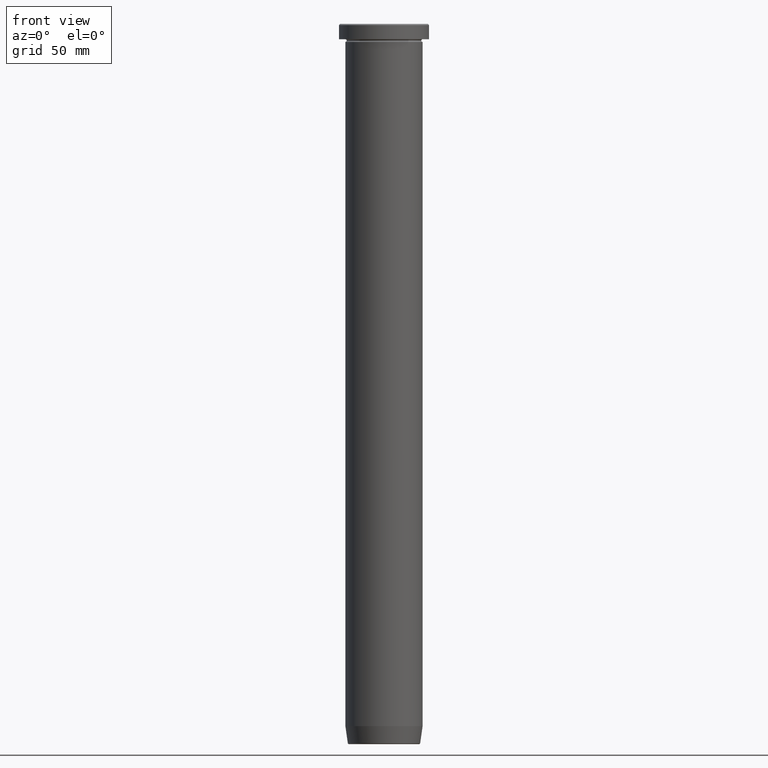
[diagram: clean part render]
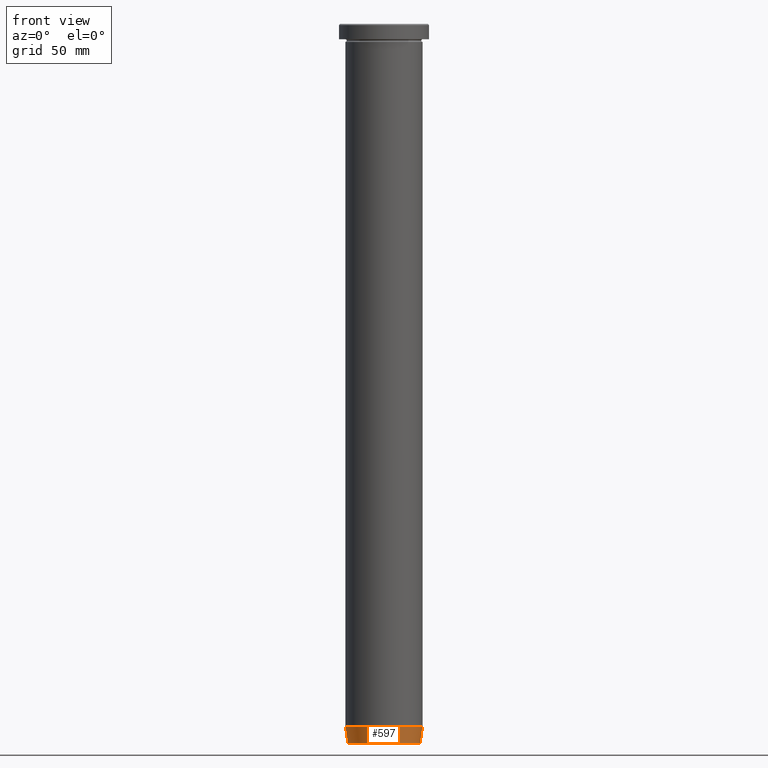
[diagram: same view with one face highlighted and labeled with its STEP entity id]
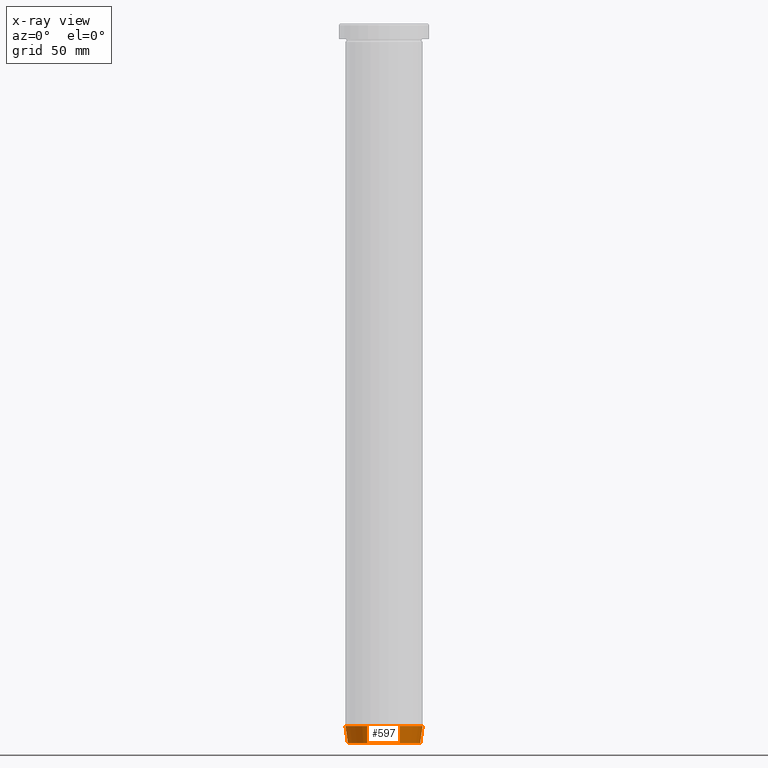
[diagram: x-ray of the same camera — body ghosted, the highlighted face saturated]
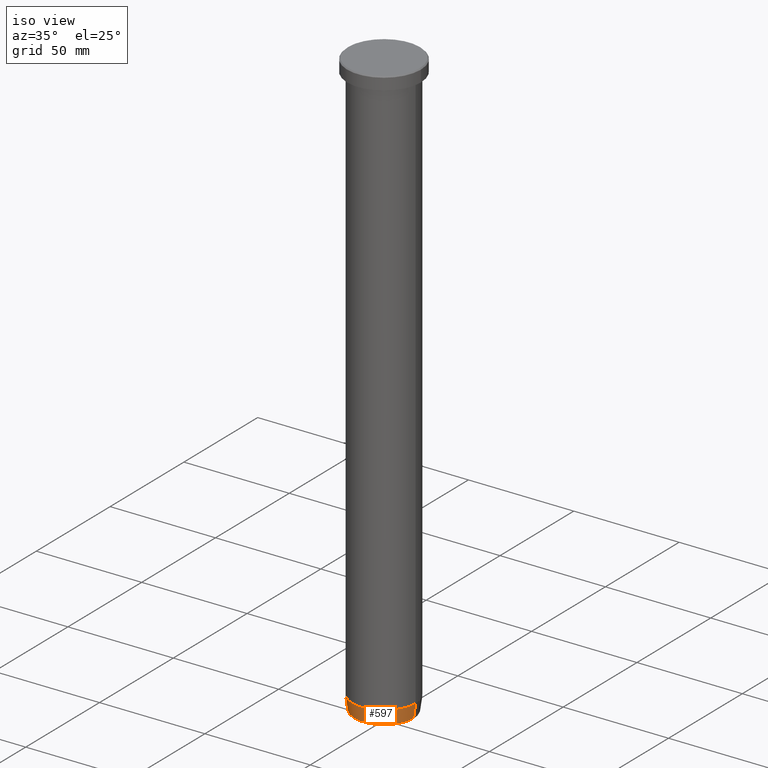
[diagram: same view with one face highlighted and labeled with its STEP entity id]
A machine part, front view. The second image highlights one B-rep face of the part: STEP entity #597.
The next image is the same camera in x-ray: the body ghosted, the highlighted face saturated — about 0% of this face is hidden behind the body in this view.
A second angle (iso view) of the same face is appended — the face is thin or edge-on in the first view.
In plain terms, the highlighted conical surface has half-angle 8 deg.
Its self-contained STEP definition (entity closure, byte-faithful):
#6 = LINE ( 'NONE', #207, #475 ) ;
#36 = DIRECTION ( 'NONE',  ( 1.000000000000000000, 0.000000000000000000, 0.000000000000000000 ) ) ;
#71 = CARTESIAN_POINT ( 'NONE',  ( -15.00000000000000000, 1.836970198721029589E-15, -272.9999999999999432 ) ) ;
#82 = CARTESIAN_POINT ( 'NONE',  ( 0.000000000000000000, 0.000000000000000000, -279.5695865504799826 ) ) ;
#85 = VERTEX_POINT ( 'NONE', #342 ) ;
#93 = CIRCLE ( 'NONE', #202, 15.00000000000000000 ) ;
#109 = VERTEX_POINT ( 'NONE', #122 ) ;
#121 = DIRECTION ( 'NONE',  ( -0.000000000000000000, -0.000000000000000000, 1.000000000000000000 ) ) ;
#122 = CARTESIAN_POINT ( 'NONE',  ( 14.07670482254592592, 0.000000000000000000, -279.5695865504799826 ) ) ;
#136 = DIRECTION ( 'NONE',  ( -0.000000000000000000, -0.000000000000000000, 1.000000000000000000 ) ) ;
#170 = EDGE_LOOP ( 'NONE', ( #554, #312, #217, #583 ) ) ;
#171 = AXIS2_PLACEMENT_3D ( 'NONE', #82, #594, #421 ) ;
#188 = CIRCLE ( 'NONE', #171, 14.07670482254592592 ) ;
#199 = CARTESIAN_POINT ( 'NONE',  ( 0.000000000000000000, 0.000000000000000000, -279.9999999999999432 ) ) ;
#202 = AXIS2_PLACEMENT_3D ( 'NONE', #573, #121, #403 ) ;
#207 = CARTESIAN_POINT ( 'NONE',  ( 14.01621415708325280, 0.000000000000000000, -279.9999999999999432 ) ) ;
#217 = ORIENTED_EDGE ( 'NONE', *, *, #404, .T. ) ;
#226 = EDGE_CURVE ( 'NONE', #264, #401, #93, .T. ) ;
#232 = AXIS2_PLACEMENT_3D ( 'NONE', #199, #136, #36 ) ;
#233 = LINE ( 'NONE', #323, #473 ) ;
#264 = VERTEX_POINT ( 'NONE', #71 ) ;
#312 = ORIENTED_EDGE ( 'NONE', *, *, #579, .T. ) ;
#323 = CARTESIAN_POINT ( 'NONE',  ( -14.01621415708325280, 1.716491180363582438E-15, -279.9999999999999432 ) ) ;
#342 = CARTESIAN_POINT ( 'NONE',  ( -14.07670482254592592, 1.780434674534163799E-15, -279.5695865504799826 ) ) ;
#380 = CARTESIAN_POINT ( 'NONE',  ( 15.00000000000000000, 0.000000000000000000, -272.9999999999999432 ) ) ;
#401 = VERTEX_POINT ( 'NONE', #380 ) ;
#403 = DIRECTION ( 'NONE',  ( 1.000000000000000000, 0.000000000000000000, 0.000000000000000000 ) ) ;
#404 = EDGE_CURVE ( 'NONE', #109, #401, #6, .T. ) ;
#421 = DIRECTION ( 'NONE',  ( -1.000000000000000000, 0.000000000000000000, 0.000000000000000000 ) ) ;
#473 = VECTOR ( 'NONE', #490, 1000.000000000000000 ) ;
#475 = VECTOR ( 'NONE', #513, 1000.000000000000000 ) ;
#490 = DIRECTION ( 'NONE',  ( -0.1391731009600661317, 1.704378926181564302E-17, 0.9902680687415702510 ) ) ;
#502 = FACE_OUTER_BOUND ( 'NONE', #170, .T. ) ;
#509 = CONICAL_SURFACE ( 'NONE', #232, 14.01621415708325280, 0.1396263401595470577 ) ;
#513 = DIRECTION ( 'NONE',  ( 0.1391731009600661317, 0.000000000000000000, 0.9902680687415702510 ) ) ;
#554 = ORIENTED_EDGE ( 'NONE', *, *, #568, .F. ) ;
#568 = EDGE_CURVE ( 'NONE', #85, #264, #233, .T. ) ;
#573 = CARTESIAN_POINT ( 'NONE',  ( 0.000000000000000000, 0.000000000000000000, -272.9999999999999432 ) ) ;
#579 = EDGE_CURVE ( 'NONE', #85, #109, #188, .T. ) ;
#583 = ORIENTED_EDGE ( 'NONE', *, *, #226, .F. ) ;
#594 = DIRECTION ( 'NONE',  ( -0.000000000000000000, -0.000000000000000000, 1.000000000000000000 ) ) ;
#597 = ADVANCED_FACE ( 'NONE', ( #502 ), #509, .T. ) ;